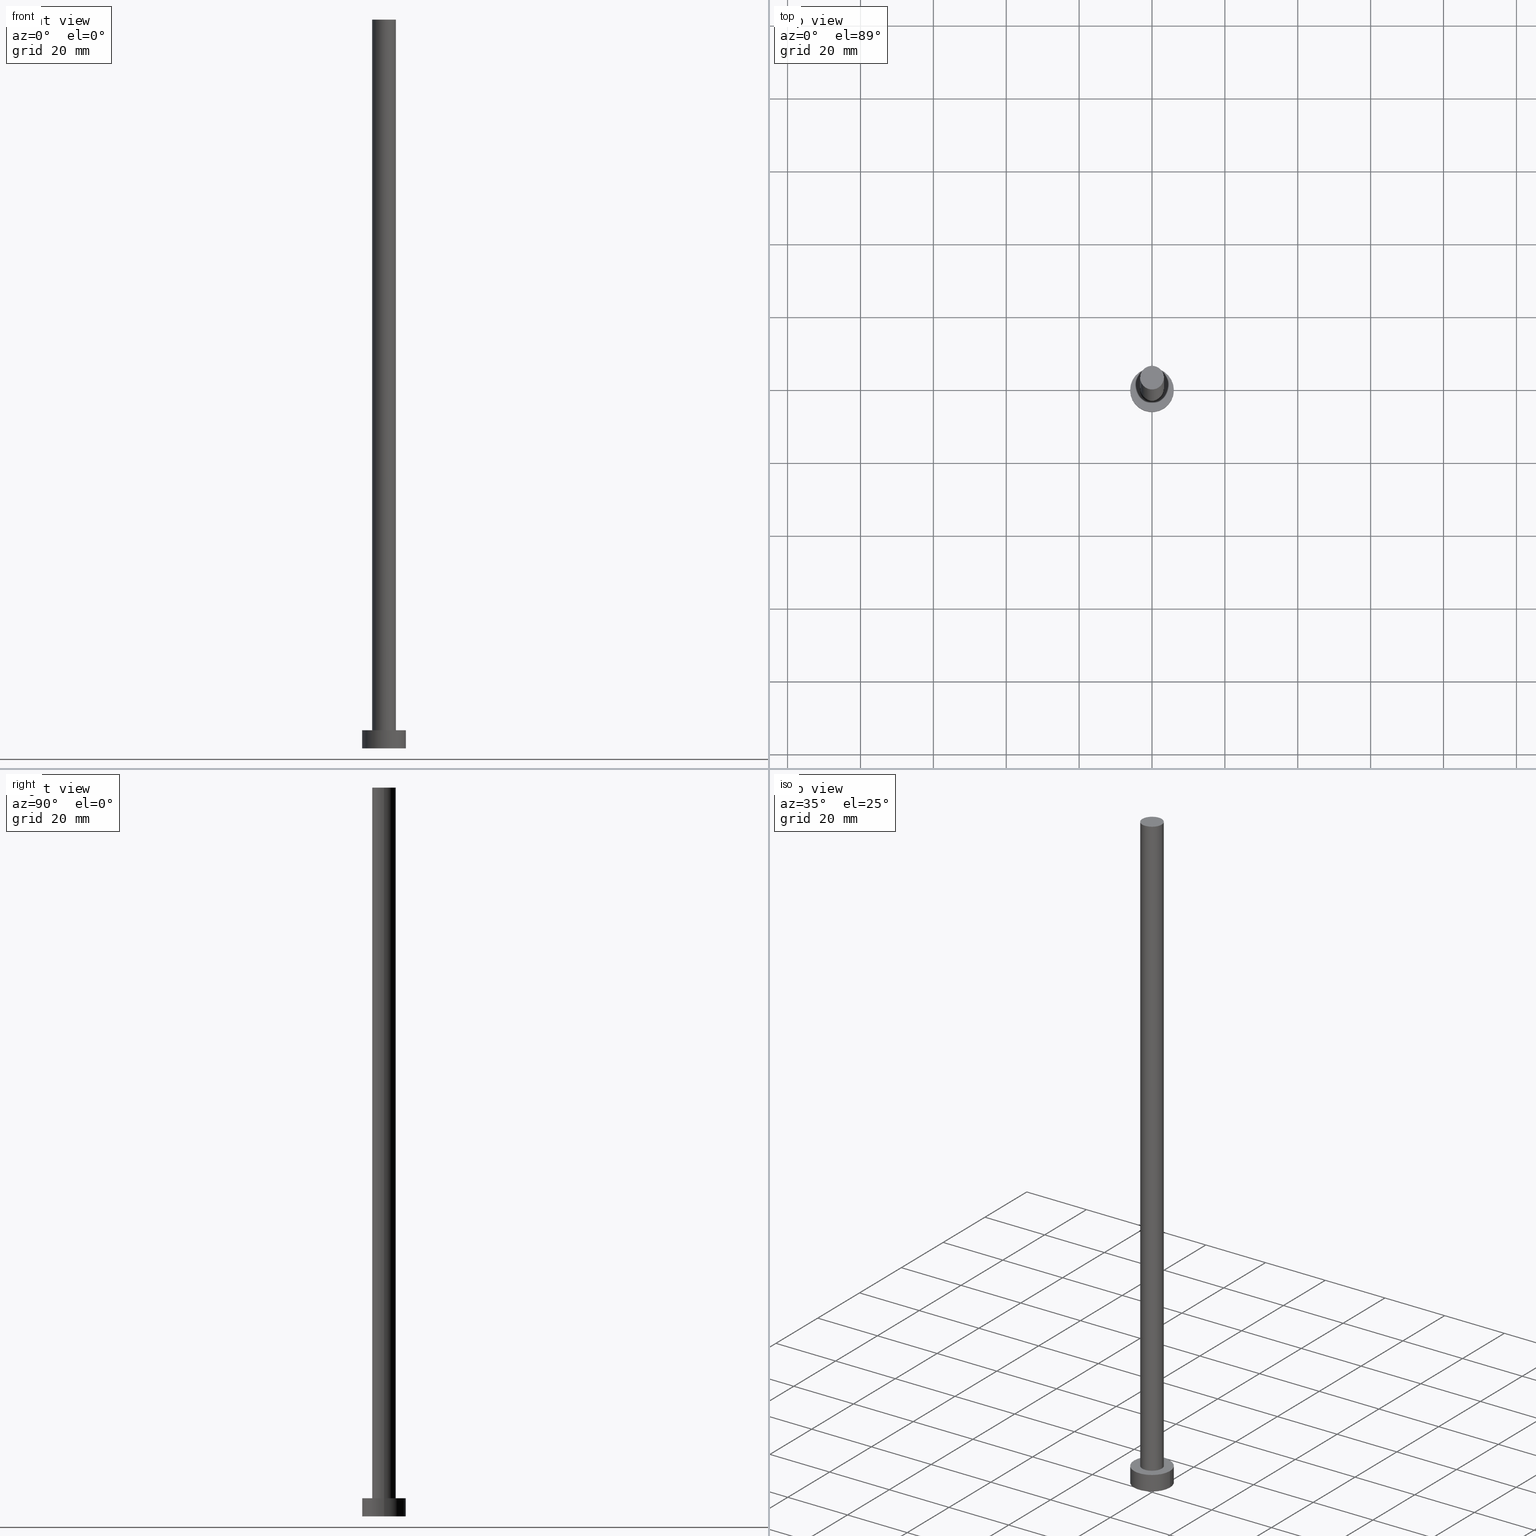
[diagram: canonical four-view strip — front | top / right | iso, engineering-drawing reading convention]
A machine part, canonical four-view strip (front | top / right | iso — engineering-drawing reading convention). The complete STEP part file that produces these views, byte-faithful:
ISO-10303-21;
HEADER;
FILE_DESCRIPTION (( 'STEP AP203' ),
    '1' );
FILE_NAME ('34d0.STEP',
    '2023-02-13T15:17:20',
    ( '' ),
    ( '' ),
    'SwSTEP 2.0',
    'SolidWorks 2019',
    '' );
FILE_SCHEMA (( 'CONFIG_CONTROL_DESIGN' ));
ENDSEC;

DATA;
#1 = PERSON_AND_ORGANIZATION ( #139, #78 ) ;
#2 = DIRECTION ( 'NONE',  ( -0.000000000000000000, -0.000000000000000000, -1.000000000000000000 ) ) ;
#3 = APPROVAL_STATUS ( 'not_yet_approved' ) ;
#4 = ADVANCED_FACE ( 'NONE', ( #146 ), #19, .T. ) ;
#5 = CARTESIAN_POINT ( 'NONE',  ( 6.000000000000000888, 7.347880794884120722E-16, 5.000000000000000000 ) ) ;
#6 = CC_DESIGN_DATE_AND_TIME_ASSIGNMENT ( #165, #86, ( #254 ) ) ;
#7 = LINE ( 'NONE', #101, #243 ) ;
#8 = CIRCLE ( 'NONE', #61, 3.250000000000000444 ) ;
#9 = PLANE ( 'NONE',  #143 ) ;
#10 = DIRECTION ( 'NONE',  ( -0.000000000000000000, -0.000000000000000000, -1.000000000000000000 ) ) ;
#11 = ORIENTED_EDGE ( 'NONE', *, *, #109, .F. ) ;
#12 = EDGE_CURVE ( 'NONE', #32, #246, #8, .T. ) ;
#13 = EDGE_LOOP ( 'NONE', ( #206, #45, #140, #106 ) ) ;
#14 = CARTESIAN_POINT ( 'NONE',  ( 0.000000000000000000, 0.000000000000000000, 200.0000000000000000 ) ) ;
#15 = DIRECTION ( 'NONE',  ( 0.000000000000000000, 0.000000000000000000, 1.000000000000000000 ) ) ;
#16 = DATE_AND_TIME ( #92, #121 ) ;
#17 =( NAMED_UNIT ( * ) PLANE_ANGLE_UNIT ( ) SI_UNIT ( $, .RADIAN. ) );
#18 = CC_DESIGN_PERSON_AND_ORGANIZATION_ASSIGNMENT ( #222, #152, ( #169 ) ) ;
#19 = PLANE ( 'NONE',  #23 ) ;
#20 = FACE_OUTER_BOUND ( 'NONE', #13, .T. ) ;
#21 = CC_DESIGN_PERSON_AND_ORGANIZATION_ASSIGNMENT ( #201, #29, ( #83 ) ) ;
#22 = PRODUCT_DEFINITION_SHAPE ( 'NONE', 'NONE',  #254 ) ;
#23 = AXIS2_PLACEMENT_3D ( 'NONE', #94, #182, #187 ) ;
#24 = MANIFOLD_SOLID_BREP ( 'P�idat vysunut�m3', #218 ) ;
#25 = CARTESIAN_POINT ( 'NONE',  ( 0.000000000000000000, 0.000000000000000000, 5.000000000000000000 ) ) ;
#26 = LINE ( 'NONE', #190, #117 ) ;
#27 = VECTOR ( 'NONE', #49, 1000.000000000000000 ) ;
#28 = VERTEX_POINT ( 'NONE', #96 ) ;
#29 = PERSON_AND_ORGANIZATION_ROLE ( 'design_supplier' ) ;
#30 = EDGE_LOOP ( 'NONE', ( #142, #174 ) ) ;
#31 = COORDINATED_UNIVERSAL_TIME_OFFSET ( 1, 0, .AHEAD. ) ;
#32 = VERTEX_POINT ( 'NONE', #91 ) ;
#33 = CYLINDRICAL_SURFACE ( 'NONE', #208, 3.250000000000000444 ) ;
#34 = DIRECTION ( 'NONE',  ( 0.000000000000000000, 0.000000000000000000, 1.000000000000000000 ) ) ;
#35 = CC_DESIGN_APPROVAL ( #204, ( #83 ) ) ;
#36 = EDGE_CURVE ( 'NONE', #200, #40, #108, .T. ) ;
#37 = CARTESIAN_POINT ( 'NONE',  ( 3.250000000000000444, 3.980102097228898231E-16, 5.000000000000000000 ) ) ;
#38 = DIRECTION ( 'NONE',  ( -0.000000000000000000, -0.000000000000000000, -1.000000000000000000 ) ) ;
#39 = MECHANICAL_CONTEXT ( 'NONE', #129, 'mechanical' ) ;
#40 = VERTEX_POINT ( 'NONE', #73 ) ;
#41 = ORIENTED_EDGE ( 'NONE', *, *, #81, .F. ) ;
#42 = APPROVAL_DATE_TIME ( #141, #204 ) ;
#43 = EDGE_CURVE ( 'NONE', #178, #200, #55, .T. ) ;
#44 = AXIS2_PLACEMENT_3D ( 'NONE', #99, #10, #79 ) ;
#45 = ORIENTED_EDGE ( 'NONE', *, *, #102, .F. ) ;
#46 = ORIENTED_EDGE ( 'NONE', *, *, #124, .T. ) ;
#47 = PERSON_AND_ORGANIZATION ( #139, #78 ) ;
#48 = DIRECTION ( 'NONE',  ( -0.000000000000000000, -0.000000000000000000, -1.000000000000000000 ) ) ;
#49 = DIRECTION ( 'NONE',  ( -0.000000000000000000, -0.000000000000000000, -1.000000000000000000 ) ) ;
#50 = AXIS2_PLACEMENT_3D ( 'NONE', #253, #70, #236 ) ;
#51 = CARTESIAN_POINT ( 'NONE',  ( 0.000000000000000000, 0.000000000000000000, 0.000000000000000000 ) ) ;
#52 = CARTESIAN_POINT ( 'NONE',  ( 0.000000000000000000, 0.000000000000000000, 5.000000000000000000 ) ) ;
#53 = APPROVAL_ROLE ( '' ) ;
#54 = ADVANCED_FACE ( 'NONE', ( #250 ), #150, .F. ) ;
#55 = LINE ( 'NONE', #212, #148 ) ;
#56 = APPLICATION_CONTEXT ( 'configuration controlled 3d designs of mechanical parts and assemblies' ) ;
#57 = DIRECTION ( 'NONE',  ( 1.000000000000000000, 0.000000000000000000, -0.000000000000000000 ) ) ;
#58 = CIRCLE ( 'NONE', #123, 6.000000000000000888 ) ;
#59 = CC_DESIGN_SECURITY_CLASSIFICATION ( #233, ( #83 ) ) ;
#60 = CARTESIAN_POINT ( 'NONE',  ( -6.000000000000000888, 0.000000000000000000, 5.000000000000000000 ) ) ;
#61 = AXIS2_PLACEMENT_3D ( 'NONE', #52, #34, #114 ) ;
#62 = ORIENTED_EDGE ( 'NONE', *, *, #197, .F. ) ;
#63 = ORIENTED_EDGE ( 'NONE', *, *, #124, .F. ) ;
#64 = APPROVAL_STATUS ( 'not_yet_approved' ) ;
#65 = PERSON_AND_ORGANIZATION_ROLE ( 'creator' ) ;
#66 = EDGE_LOOP ( 'NONE', ( #126, #41 ) ) ;
#67 = ORIENTED_EDGE ( 'NONE', *, *, #240, .T. ) ;
#68 = APPROVAL_ROLE ( '' ) ;
#69 = APPROVAL ( #3, 'NEUR�EN�' ) ;
#70 = DIRECTION ( 'NONE',  ( 0.000000000000000000, 0.000000000000000000, 1.000000000000000000 ) ) ;
#71 = CC_DESIGN_APPROVAL ( #220, ( #254 ) ) ;
#72 = SHAPE_DEFINITION_REPRESENTATION ( #22, #105 ) ;
#73 = CARTESIAN_POINT ( 'NONE',  ( -6.000000000000000888, 0.000000000000000000, 0.000000000000000000 ) ) ;
#74 = DIRECTION ( 'NONE',  ( 1.000000000000000000, 0.000000000000000000, 0.000000000000000000 ) ) ;
#75 = APPROVAL_STATUS ( 'not_yet_approved' ) ;
#76 = DIRECTION ( 'NONE',  ( 0.000000000000000000, 0.000000000000000000, 1.000000000000000000 ) ) ;
#77 = FACE_OUTER_BOUND ( 'NONE', #179, .T. ) ;
#78 = ORGANIZATION ( 'NEUR�EN�', 'NEUR�EN�', '' ) ;
#79 = DIRECTION ( 'NONE',  ( -1.000000000000000000, 0.000000000000000000, 0.000000000000000000 ) ) ;
#80 = ADVANCED_FACE ( 'NONE', ( #20 ), #33, .T. ) ;
#81 = EDGE_CURVE ( 'NONE', #246, #32, #136, .T. ) ;
#82 = ORIENTED_EDGE ( 'NONE', *, *, #90, .F. ) ;
#83 = PRODUCT_DEFINITION_FORMATION_WITH_SPECIFIED_SOURCE ( 'LIBOVOLN�', '', #169, .NOT_KNOWN. ) ;
#84 = ORIENTED_EDGE ( 'NONE', *, *, #43, .F. ) ;
#85 = PERSON_AND_ORGANIZATION ( #139, #78 ) ;
#86 = DATE_TIME_ROLE ( 'creation_date' ) ;
#87 = ORIENTED_EDGE ( 'NONE', *, *, #81, .T. ) ;
#88 = APPROVAL_PERSON_ORGANIZATION ( #170, #69, #53 ) ;
#89 = DATE_AND_TIME ( #228, #209 ) ;
#90 = EDGE_CURVE ( 'NONE', #161, #28, #242, .T. ) ;
#91 = CARTESIAN_POINT ( 'NONE',  ( -3.250000000000000444, 0.000000000000000000, 5.000000000000000000 ) ) ;
#92 = CALENDAR_DATE ( 2023, 13, 2 ) ;
#93 = APPLICATION_PROTOCOL_DEFINITION ( 'international standard', 'config_control_design', 1994, #129 ) ;
#94 = CARTESIAN_POINT ( 'NONE',  ( 0.000000000000000000, 0.000000000000000000, 200.0000000000000000 ) ) ;
#95 = CC_DESIGN_APPROVAL ( #69, ( #233 ) ) ;
#96 = CARTESIAN_POINT ( 'NONE',  ( -3.250000000000000444, 0.000000000000000000, 200.0000000000000000 ) ) ;
#97 = CARTESIAN_POINT ( 'NONE',  ( 0.000000000000000000, 0.000000000000000000, 5.000000000000000000 ) ) ;
#98 = DIRECTION ( 'NONE',  ( 1.000000000000000000, 0.000000000000000000, 0.000000000000000000 ) ) ;
#99 = CARTESIAN_POINT ( 'NONE',  ( 0.000000000000000000, 0.000000000000000000, 200.0000000000000000 ) ) ;
#100 = DIRECTION ( 'NONE',  ( 1.000000000000000000, 0.000000000000000000, 0.000000000000000000 ) ) ;
#101 = CARTESIAN_POINT ( 'NONE',  ( 3.250000000000000444, 3.980102097228898231E-16, 200.0000000000000000 ) ) ;
#102 = EDGE_CURVE ( 'NONE', #28, #161, #127, .T. ) ;
#103 = EDGE_LOOP ( 'NONE', ( #125, #225 ) ) ;
#104 = LOCAL_TIME ( 16, 17, 20.00000000000000000, #248 ) ;
#105 = ADVANCED_BREP_SHAPE_REPRESENTATION ( '34d0', ( #24, #244 ), #194 ) ;
#106 = ORIENTED_EDGE ( 'NONE', *, *, #12, .T. ) ;
#107 = APPROVAL_ROLE ( '' ) ;
#108 = CIRCLE ( 'NONE', #50, 6.000000000000000888 ) ;
#109 = EDGE_CURVE ( 'NONE', #178, #223, #116, .T. ) ;
#110 = PERSON_AND_ORGANIZATION ( #139, #78 ) ;
#111 =( NAMED_UNIT ( * ) SI_UNIT ( $, .STERADIAN. ) SOLID_ANGLE_UNIT ( ) );
#112 = DIRECTION ( 'NONE',  ( 1.000000000000000000, 0.000000000000000000, 0.000000000000000000 ) ) ;
#113 = DIRECTION ( 'NONE',  ( 0.000000000000000000, 0.000000000000000000, 1.000000000000000000 ) ) ;
#114 = DIRECTION ( 'NONE',  ( 1.000000000000000000, 0.000000000000000000, 0.000000000000000000 ) ) ;
#115 = APPLICATION_PROTOCOL_DEFINITION ( 'international standard', 'config_control_design', 1994, #56 ) ;
#116 = CIRCLE ( 'NONE', #176, 6.000000000000000888 ) ;
#117 = VECTOR ( 'NONE', #2, 1000.000000000000000 ) ;
#118 = CARTESIAN_POINT ( 'NONE',  ( 0.000000000000000000, 0.000000000000000000, 5.000000000000000000 ) ) ;
#119 = FACE_OUTER_BOUND ( 'NONE', #221, .T. ) ;
#120 = CC_DESIGN_PERSON_AND_ORGANIZATION_ASSIGNMENT ( #47, #65, ( #254 ) ) ;
#121 = LOCAL_TIME ( 16, 17, 20.00000000000000000, #183 ) ;
#122 = PERSON_AND_ORGANIZATION_ROLE ( 'creator' ) ;
#123 = AXIS2_PLACEMENT_3D ( 'NONE', #118, #76, #100 ) ;
#124 = EDGE_CURVE ( 'NONE', #223, #40, #147, .T. ) ;
#125 = ORIENTED_EDGE ( 'NONE', *, *, #102, .T. ) ;
#126 = ORIENTED_EDGE ( 'NONE', *, *, #12, .F. ) ;
#127 = CIRCLE ( 'NONE', #230, 3.250000000000000444 ) ;
#128 = CARTESIAN_POINT ( 'NONE',  ( 0.000000000000000000, 0.000000000000000000, 200.0000000000000000 ) ) ;
#129 = APPLICATION_CONTEXT ( 'configuration controlled 3d designs of mechanical parts and assemblies' ) ;
#130 = DIRECTION ( 'NONE',  ( -1.000000000000000000, 0.000000000000000000, 0.000000000000000000 ) ) ;
#131 = DIRECTION ( 'NONE',  ( 1.000000000000000000, 0.000000000000000000, 0.000000000000000000 ) ) ;
#132 = CARTESIAN_POINT ( 'NONE',  ( 0.000000000000000000, 0.000000000000000000, 5.000000000000000000 ) ) ;
#133 = LOCAL_TIME ( 16, 17, 20.00000000000000000, #31 ) ;
#134 = CC_DESIGN_PERSON_AND_ORGANIZATION_ASSIGNMENT ( #85, #203, ( #233 ) ) ;
#135 = CARTESIAN_POINT ( 'NONE',  ( 0.000000000000000000, 0.000000000000000000, 0.000000000000000000 ) ) ;
#136 = CIRCLE ( 'NONE', #166, 3.250000000000000444 ) ;
#137 = AXIS2_PLACEMENT_3D ( 'NONE', #25, #48, #234 ) ;
#138 = EDGE_LOOP ( 'NONE', ( #82, #177, #87, #62 ) ) ;
#139 = PERSON ( 'NEUR�EN�', 'NEUR�EN�', 'NEUR�EN�', ('NEUR�EN�'), ('NEUR�EN�'), ('NEUR�EN�') ) ;
#140 = ORIENTED_EDGE ( 'NONE', *, *, #197, .T. ) ;
#141 = DATE_AND_TIME ( #162, #104 ) ;
#142 = ORIENTED_EDGE ( 'NONE', *, *, #240, .F. ) ;
#143 = AXIS2_PLACEMENT_3D ( 'NONE', #132, #216, #57 ) ;
#144 = EDGE_LOOP ( 'NONE', ( #11, #202, #163, #63 ) ) ;
#145 = CALENDAR_DATE ( 2023, 13, 2 ) ;
#146 = FACE_OUTER_BOUND ( 'NONE', #103, .T. ) ;
#147 = LINE ( 'NONE', #229, #27 ) ;
#148 = VECTOR ( 'NONE', #167, 1000.000000000000000 ) ;
#149 = LOCAL_TIME ( 16, 17, 20.00000000000000000, #207 ) ;
#150 = PLANE ( 'NONE',  #247 ) ;
#151 = DIRECTION ( 'NONE',  ( 1.000000000000000000, 0.000000000000000000, -0.000000000000000000 ) ) ;
#152 = PERSON_AND_ORGANIZATION_ROLE ( 'design_owner' ) ;
#153 = DIRECTION ( 'NONE',  ( -0.000000000000000000, -0.000000000000000000, -1.000000000000000000 ) ) ;
#154 = DIRECTION ( 'NONE',  ( 0.000000000000000000, 0.000000000000000000, 1.000000000000000000 ) ) ;
#155 = FACE_OUTER_BOUND ( 'NONE', #144, .T. ) ;
#156 = CIRCLE ( 'NONE', #252, 6.000000000000000888 ) ;
#157 = CYLINDRICAL_SURFACE ( 'NONE', #231, 6.000000000000000888 ) ;
#158 = ORIENTED_EDGE ( 'NONE', *, *, #199, .T. ) ;
#159 = APPROVAL_PERSON_ORGANIZATION ( #1, #220, #68 ) ;
#160 = SECURITY_CLASSIFICATION_LEVEL ( 'unclassified' ) ;
#161 = VERTEX_POINT ( 'NONE', #185 ) ;
#162 = CALENDAR_DATE ( 2023, 13, 2 ) ;
#163 = ORIENTED_EDGE ( 'NONE', *, *, #36, .T. ) ;
#164 = DIRECTION ( 'NONE',  ( 0.000000000000000000, 0.000000000000000000, 1.000000000000000000 ) ) ;
#165 = DATE_AND_TIME ( #226, #149 ) ;
#166 = AXIS2_PLACEMENT_3D ( 'NONE', #97, #15, #255 ) ;
#167 = DIRECTION ( 'NONE',  ( -0.000000000000000000, -0.000000000000000000, -1.000000000000000000 ) ) ;
#168 = DESIGN_CONTEXT ( 'detailed design', #56, 'design' ) ;
#169 = PRODUCT ( '34d0', '34d0', '', ( #39 ) ) ;
#170 = PERSON_AND_ORGANIZATION ( #139, #78 ) ;
#171 = FACE_OUTER_BOUND ( 'NONE', #138, .T. ) ;
#172 = APPROVAL_PERSON_ORGANIZATION ( #110, #204, #107 ) ;
#173 = CARTESIAN_POINT ( 'NONE',  ( 6.000000000000000888, 7.347880794884120722E-16, 0.000000000000000000 ) ) ;
#174 = ORIENTED_EDGE ( 'NONE', *, *, #36, .F. ) ;
#175 = ADVANCED_FACE ( 'NONE', ( #251, #77 ), #9, .T. ) ;
#176 = AXIS2_PLACEMENT_3D ( 'NONE', #232, #181, #112 ) ;
#177 = ORIENTED_EDGE ( 'NONE', *, *, #184, .T. ) ;
#178 = VERTEX_POINT ( 'NONE', #5 ) ;
#179 = EDGE_LOOP ( 'NONE', ( #158, #198 ) ) ;
#180 = PERSON_AND_ORGANIZATION ( #139, #78 ) ;
#181 = DIRECTION ( 'NONE',  ( 0.000000000000000000, 0.000000000000000000, 1.000000000000000000 ) ) ;
#182 = DIRECTION ( 'NONE',  ( 0.000000000000000000, 0.000000000000000000, 1.000000000000000000 ) ) ;
#183 = COORDINATED_UNIVERSAL_TIME_OFFSET ( 1, 0, .AHEAD. ) ;
#184 = EDGE_CURVE ( 'NONE', #161, #246, #7, .T. ) ;
#185 = CARTESIAN_POINT ( 'NONE',  ( 3.250000000000000444, 3.980102097228898231E-16, 200.0000000000000000 ) ) ;
#186 = ADVANCED_FACE ( 'NONE', ( #119 ), #157, .T. ) ;
#187 = DIRECTION ( 'NONE',  ( 1.000000000000000000, 0.000000000000000000, -0.000000000000000000 ) ) ;
#188 =( LENGTH_UNIT ( ) NAMED_UNIT ( * ) SI_UNIT ( .MILLI., .METRE. ) );
#189 = APPROVAL_DATE_TIME ( #16, #69 ) ;
#190 = CARTESIAN_POINT ( 'NONE',  ( -3.250000000000000444, 0.000000000000000000, 200.0000000000000000 ) ) ;
#191 = AXIS2_PLACEMENT_3D ( 'NONE', #128, #164, #74 ) ;
#192 = CYLINDRICAL_SURFACE ( 'NONE', #137, 6.000000000000000888 ) ;
#193 = CC_DESIGN_PERSON_AND_ORGANIZATION_ASSIGNMENT ( #180, #122, ( #83 ) ) ;
#194 =( GEOMETRIC_REPRESENTATION_CONTEXT ( 3 ) GLOBAL_UNCERTAINTY_ASSIGNED_CONTEXT ( ( #195 ) ) GLOBAL_UNIT_ASSIGNED_CONTEXT ( ( #188, #17, #111 ) ) REPRESENTATION_CONTEXT ( 'NONE', 'WORKASPACE' ) );
#195 = UNCERTAINTY_MEASURE_WITH_UNIT (LENGTH_MEASURE( 1.000000000000000082E-05 ), #188, 'distance_accuracy_value', 'NONE');
#196 = DIRECTION ( 'NONE',  ( -0.000000000000000000, -0.000000000000000000, -1.000000000000000000 ) ) ;
#197 = EDGE_CURVE ( 'NONE', #28, #32, #26, .T. ) ;
#198 = ORIENTED_EDGE ( 'NONE', *, *, #109, .T. ) ;
#199 = EDGE_CURVE ( 'NONE', #223, #178, #58, .T. ) ;
#200 = VERTEX_POINT ( 'NONE', #173 ) ;
#201 = PERSON_AND_ORGANIZATION ( #139, #78 ) ;
#202 = ORIENTED_EDGE ( 'NONE', *, *, #43, .T. ) ;
#203 = PERSON_AND_ORGANIZATION_ROLE ( 'classification_officer' ) ;
#204 = APPROVAL ( #64, 'NEUR�EN�' ) ;
#205 = COORDINATED_UNIVERSAL_TIME_OFFSET ( 1, 0, .AHEAD. ) ;
#206 = ORIENTED_EDGE ( 'NONE', *, *, #184, .F. ) ;
#207 = COORDINATED_UNIVERSAL_TIME_OFFSET ( 1, 0, .AHEAD. ) ;
#208 = AXIS2_PLACEMENT_3D ( 'NONE', #14, #153, #130 ) ;
#209 = LOCAL_TIME ( 16, 17, 20.00000000000000000, #205 ) ;
#210 = APPROVAL_DATE_TIME ( #89, #220 ) ;
#211 = ADVANCED_FACE ( 'NONE', ( #171 ), #241, .T. ) ;
#212 = CARTESIAN_POINT ( 'NONE',  ( 6.000000000000000888, 7.347880794884120722E-16, 5.000000000000000000 ) ) ;
#213 = DATE_AND_TIME ( #145, #133 ) ;
#214 = CARTESIAN_POINT ( 'NONE',  ( 0.000000000000000000, 0.000000000000000000, 0.000000000000000000 ) ) ;
#215 = DIRECTION ( 'NONE',  ( -1.000000000000000000, 0.000000000000000000, 0.000000000000000000 ) ) ;
#216 = DIRECTION ( 'NONE',  ( 0.000000000000000000, 0.000000000000000000, 1.000000000000000000 ) ) ;
#217 = CARTESIAN_POINT ( 'NONE',  ( 0.000000000000000000, 0.000000000000000000, 5.000000000000000000 ) ) ;
#218 = CLOSED_SHELL ( 'NONE', ( #211, #249, #186, #175, #54, #80, #4 ) ) ;
#219 = DIRECTION ( 'NONE',  ( 0.000000000000000000, 0.000000000000000000, 1.000000000000000000 ) ) ;
#220 = APPROVAL ( #75, 'NEUR�EN�' ) ;
#221 = EDGE_LOOP ( 'NONE', ( #84, #224, #46, #67 ) ) ;
#222 = PERSON_AND_ORGANIZATION ( #139, #78 ) ;
#223 = VERTEX_POINT ( 'NONE', #60 ) ;
#224 = ORIENTED_EDGE ( 'NONE', *, *, #199, .F. ) ;
#225 = ORIENTED_EDGE ( 'NONE', *, *, #90, .T. ) ;
#226 = CALENDAR_DATE ( 2023, 13, 2 ) ;
#227 = CC_DESIGN_DATE_AND_TIME_ASSIGNMENT ( #213, #239, ( #233 ) ) ;
#228 = CALENDAR_DATE ( 2023, 13, 2 ) ;
#229 = CARTESIAN_POINT ( 'NONE',  ( -6.000000000000000888, 0.000000000000000000, 5.000000000000000000 ) ) ;
#230 = AXIS2_PLACEMENT_3D ( 'NONE', #237, #113, #131 ) ;
#231 = AXIS2_PLACEMENT_3D ( 'NONE', #217, #196, #215 ) ;
#232 = CARTESIAN_POINT ( 'NONE',  ( 0.000000000000000000, 0.000000000000000000, 5.000000000000000000 ) ) ;
#233 = SECURITY_CLASSIFICATION ( '', '', #160 ) ;
#234 = DIRECTION ( 'NONE',  ( -1.000000000000000000, 0.000000000000000000, 0.000000000000000000 ) ) ;
#235 = DIRECTION ( 'NONE',  ( 0.000000000000000000, 0.000000000000000000, 1.000000000000000000 ) ) ;
#236 = DIRECTION ( 'NONE',  ( 1.000000000000000000, 0.000000000000000000, 0.000000000000000000 ) ) ;
#237 = CARTESIAN_POINT ( 'NONE',  ( 0.000000000000000000, 0.000000000000000000, 200.0000000000000000 ) ) ;
#238 = DIRECTION ( 'NONE',  ( 1.000000000000000000, 0.000000000000000000, 0.000000000000000000 ) ) ;
#239 = DATE_TIME_ROLE ( 'classification_date' ) ;
#240 = EDGE_CURVE ( 'NONE', #40, #200, #156, .T. ) ;
#241 = CYLINDRICAL_SURFACE ( 'NONE', #44, 3.250000000000000444 ) ;
#242 = CIRCLE ( 'NONE', #191, 3.250000000000000444 ) ;
#243 = VECTOR ( 'NONE', #38, 1000.000000000000000 ) ;
#244 = AXIS2_PLACEMENT_3D ( 'NONE', #135, #219, #98 ) ;
#245 = PRODUCT_RELATED_PRODUCT_CATEGORY ( 'detail', '', ( #169 ) ) ;
#246 = VERTEX_POINT ( 'NONE', #37 ) ;
#247 = AXIS2_PLACEMENT_3D ( 'NONE', #51, #235, #151 ) ;
#248 = COORDINATED_UNIVERSAL_TIME_OFFSET ( 1, 0, .AHEAD. ) ;
#249 = ADVANCED_FACE ( 'NONE', ( #155 ), #192, .T. ) ;
#250 = FACE_OUTER_BOUND ( 'NONE', #30, .T. ) ;
#251 = FACE_BOUND ( 'NONE', #66, .T. ) ;
#252 = AXIS2_PLACEMENT_3D ( 'NONE', #214, #154, #238 ) ;
#253 = CARTESIAN_POINT ( 'NONE',  ( 0.000000000000000000, 0.000000000000000000, 0.000000000000000000 ) ) ;
#254 = PRODUCT_DEFINITION ( 'NEZN�M�', '', #83, #168 ) ;
#255 = DIRECTION ( 'NONE',  ( 1.000000000000000000, 0.000000000000000000, 0.000000000000000000 ) ) ;
ENDSEC;
END-ISO-10303-21;
